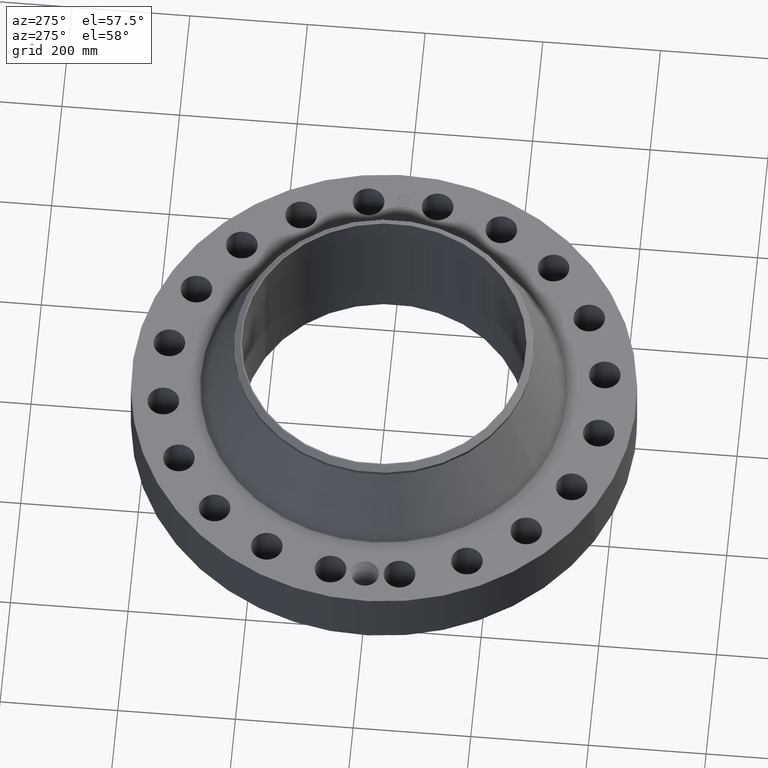
[diagram: clean part render]
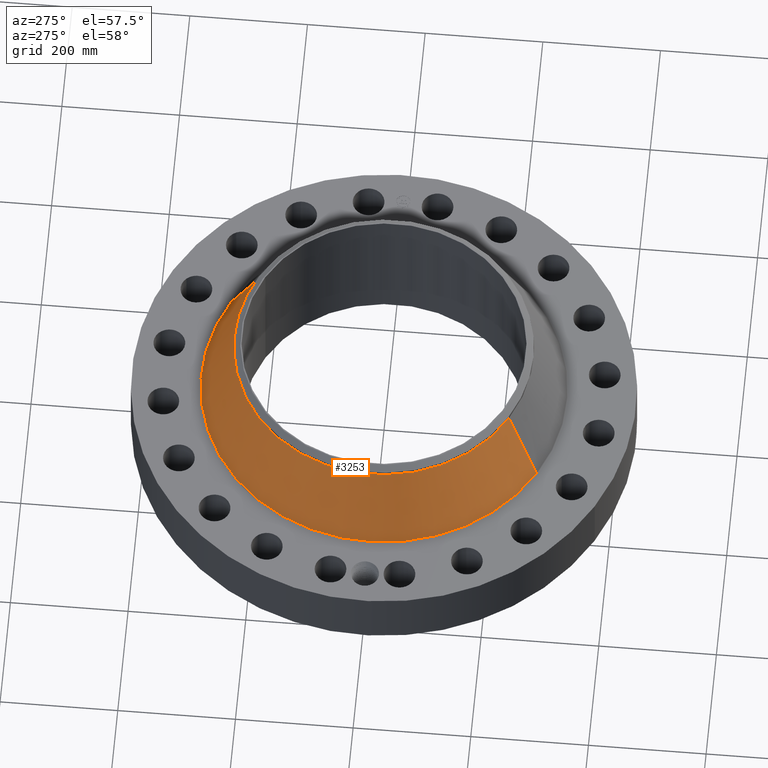
[diagram: same view with one face highlighted and labeled with its STEP entity id]
A machine part, auxiliary view. The second image highlights one B-rep face of the part: STEP entity #3253.
In plain terms, the highlighted conical surface has half-angle 24.485 deg.
Its self-contained STEP definition (entity closure, byte-faithful):
#2557=AXIS2_PLACEMENT_3D('Circle Axis2P3D',#2555,#2556,$) ;
#3214=AXIS2_PLACEMENT_3D('Cone Axis2P3D',#3211,#3212,#3213) ;
#3244=AXIS2_PLACEMENT_3D('Circle Axis2P3D',#3242,#3243,$) ;
#2533=CARTESIAN_POINT('Vertex',(5.85762134976,10.7223039592,4.57026484818)) ;
#2540=CARTESIAN_POINT('Vertex',(-5.85762134976,-10.7223039592,4.57026484818)) ;
#2555=CARTESIAN_POINT('Axis2P3D Location',(0.,0.,4.57026484818)) ;
#3211=CARTESIAN_POINT('Axis2P3D Location',(0.,0.,9.44053548148)) ;
#3216=CARTESIAN_POINT('Line Origine',(5.32593836791,9.74906478906,7.00540016483)) ;
#3220=CARTESIAN_POINT('Vertex',(4.79425538606,8.77582561894,9.44053548148)) ;
#3227=CARTESIAN_POINT('Vertex',(-4.79425538606,-8.77582561894,9.44053548148)) ;
#3230=CARTESIAN_POINT('Line Origine',(-5.32593836791,-9.74906478906,7.00540016483)) ;
#3242=CARTESIAN_POINT('Axis2P3D Location',(0.,0.,9.44053548148)) ;
#2556=DIRECTION('Axis2P3D Direction',(0.,0.,-0.0393700787402)) ;
#3212=DIRECTION('Axis2P3D Direction',(0.,0.,-0.0393700787402)) ;
#3213=DIRECTION('Axis2P3D XDirection',(-0.0188750212049,-0.0345504945626,0.)) ;
#3217=DIRECTION('Vector Direction',(0.00782293371329,0.0143197841099,-0.0358294374944)) ;
#3231=DIRECTION('Vector Direction',(-0.00782293371329,-0.0143197841099,-0.0358294374944)) ;
#3243=DIRECTION('Axis2P3D Direction',(0.,0.,-0.0393700787402)) ;
#3218=VECTOR('Line Direction',#3217,0.0393700787402) ;
#3232=VECTOR('Line Direction',#3231,0.0393700787402) ;
#3248=ORIENTED_EDGE('',*,*,#2559,.F.) ;
#3249=ORIENTED_EDGE('',*,*,#3234,.T.) ;
#3250=ORIENTED_EDGE('',*,*,#3246,.T.) ;
#3251=ORIENTED_EDGE('',*,*,#3222,.F.) ;
#3253=ADVANCED_FACE('PartBody',(#3252),#3215,.T.) ;
#2558=CIRCLE('generated circle',#2557,12.2180002484) ;
#3245=CIRCLE('generated circle',#3244,10.) ;
#3215=CONICAL_SURFACE('Cone',#3214,10.,0.427348919185) ;
#2559=EDGE_CURVE('',#2541,#2534,#2558,.T.) ;
#3222=EDGE_CURVE('',#2534,#3221,#3219,.F.) ;
#3234=EDGE_CURVE('',#2541,#3228,#3233,.F.) ;
#3246=EDGE_CURVE('',#3228,#3221,#3245,.T.) ;
#3247=EDGE_LOOP('',(#3248,#3249,#3250,#3251)) ;
#3252=FACE_OUTER_BOUND('',#3247,.T.) ;
#3219=LINE('Line',#3216,#3218) ;
#3233=LINE('Line',#3230,#3232) ;
#2534=VERTEX_POINT('',#2533) ;
#2541=VERTEX_POINT('',#2540) ;
#3221=VERTEX_POINT('',#3220) ;
#3228=VERTEX_POINT('',#3227) ;